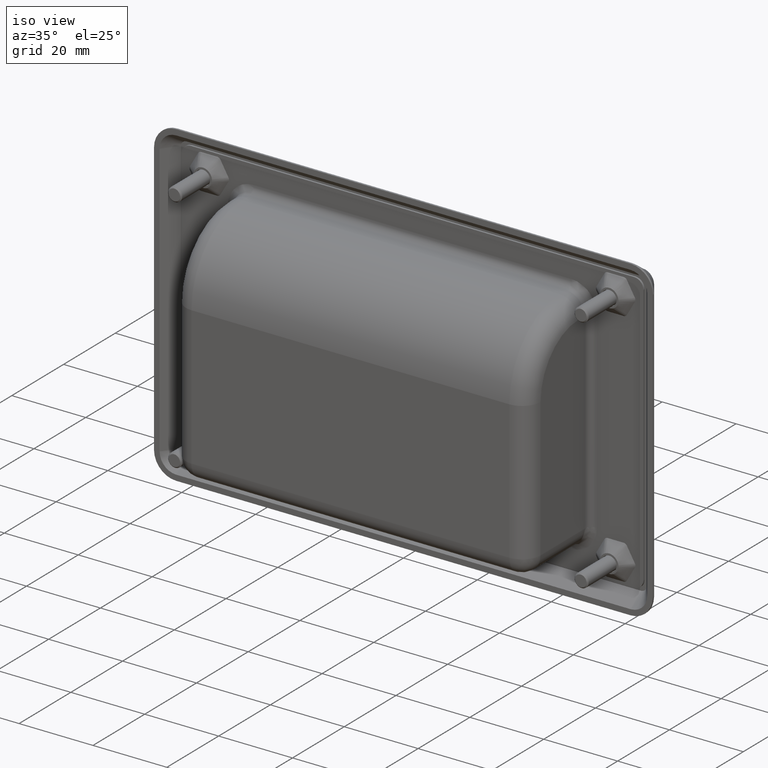
[diagram: clean part render]
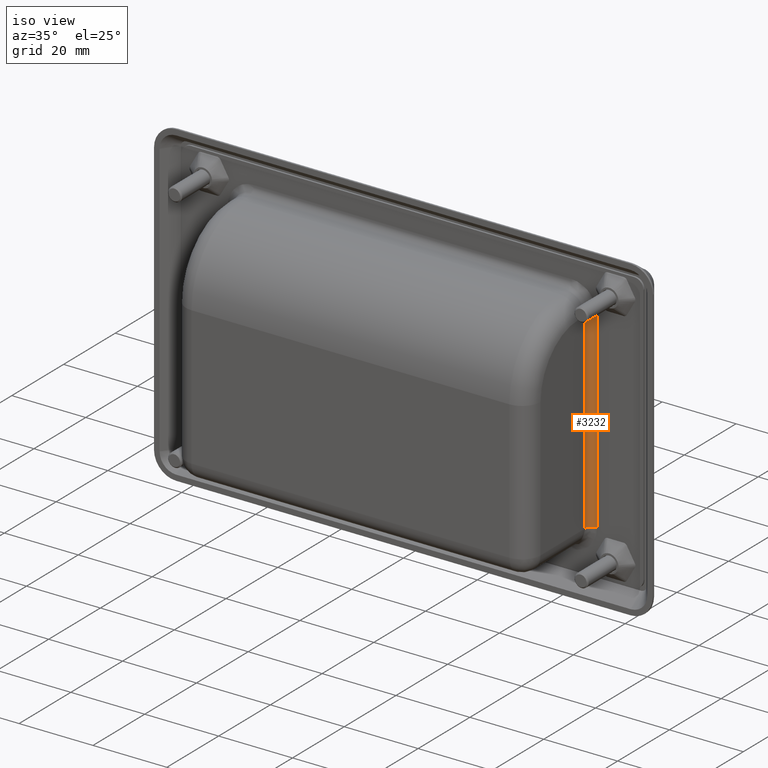
[diagram: same view with one face highlighted and labeled with its STEP entity id]
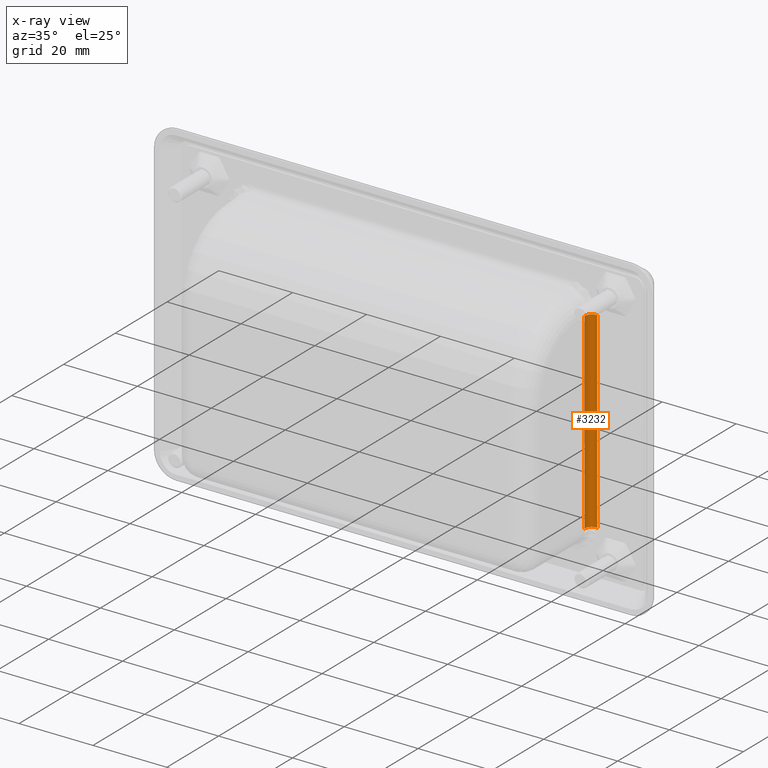
[diagram: x-ray of the same camera — body ghosted, the highlighted face saturated]
A machine part, iso view. The second image highlights one B-rep face of the part: STEP entity #3232.
The next image is the same camera in x-ray: the body ghosted, the highlighted face saturated — about 0% of this face is hidden behind the body in this view.
In plain terms, the highlighted face is a freeform B-spline surface patch.
Its self-contained STEP definition (entity closure, byte-faithful):
#83=B_SPLINE_SURFACE_WITH_KNOTS('',3,1,((#6890,#6891),(#6892,#6893),(#6894,
#6895),(#6896,#6897),(#6898,#6899),(#6900,#6901),(#6902,#6903),(#6904,#6905)),
 .UNSPECIFIED.,.F.,.F.,.F.,(4,1,1,1,1,4),(2,2),(0.,0.285714285714286,0.428571428571429,
0.571428571428571,0.857142857142857,1.),(0.,6.24),.UNSPECIFIED.);
#149=B_SPLINE_CURVE_WITH_KNOTS('',3,(#6881,#6882,#6883,#6884,#6885,#6886,
#6887,#6888),.UNSPECIFIED.,.F.,.F.,(4,1,1,1,1,4),(-1.,-0.857142857142857,
-0.571428571428571,-0.428571428571429,-0.285714285714286,0.),
 .UNSPECIFIED.);
#150=B_SPLINE_CURVE_WITH_KNOTS('',3,(#6908,#6909,#6910,#6911,#6912,#6913,
#6914,#6915),.UNSPECIFIED.,.F.,.F.,(4,1,1,1,1,4),(0.,0.285714285714286,
0.428571428571429,0.571428571428571,0.857142857142857,1.),.UNSPECIFIED.);
#417=FACE_OUTER_BOUND('',#636,.T.);
#636=EDGE_LOOP('',(#2782,#2783,#2784,#2785));
#894=LINE('',#6916,#1138);
#895=LINE('',#6917,#1139);
#1138=VECTOR('',#4233,52.);
#1139=VECTOR('',#4234,52.);
#1591=VERTEX_POINT('',#6878);
#1592=VERTEX_POINT('',#6880);
#1593=VERTEX_POINT('',#6906);
#1594=VERTEX_POINT('',#6907);
#2013=EDGE_CURVE('',#1591,#1592,#149,.T.);
#2015=EDGE_CURVE('',#1593,#1594,#150,.T.);
#2016=EDGE_CURVE('',#1594,#1592,#894,.T.);
#2017=EDGE_CURVE('',#1591,#1593,#895,.T.);
#2782=ORIENTED_EDGE('',*,*,#2015,.T.);
#2783=ORIENTED_EDGE('',*,*,#2016,.T.);
#2784=ORIENTED_EDGE('',*,*,#2013,.F.);
#2785=ORIENTED_EDGE('',*,*,#2017,.T.);
#3232=ADVANCED_FACE('',(#417),#83,.T.);
#4233=DIRECTION('',(0.,0.,-1.));
#4234=DIRECTION('',(0.,0.,1.));
#6878=CARTESIAN_POINT('',(50.,0.,-26.));
#6880=CARTESIAN_POINT('',(48.,-2.,-26.));
#6881=CARTESIAN_POINT('Ctrl Pts',(50.,-5.55111512312578E-15,-26.));
#6882=CARTESIAN_POINT('Ctrl Pts',(49.8504003498291,-4.36687723019228E-15,
-26.));
#6883=CARTESIAN_POINT('Ctrl Pts',(49.4092506257795,0.00334211089015276,
-26.));
#6884=CARTESIAN_POINT('Ctrl Pts',(48.8148766596764,-0.211205081114927,-26.));
#6885=CARTESIAN_POINT('Ctrl Pts',(48.3365007526744,-0.692768602149364,-26.));
#6886=CARTESIAN_POINT('Ctrl Pts',(48.0222033752099,-1.25187620031755,-26.));
#6887=CARTESIAN_POINT('Ctrl Pts',(48.,-1.70080069965811,-26.));
#6888=CARTESIAN_POINT('Ctrl Pts',(48.,-2.,-26.));
#6890=CARTESIAN_POINT('Ctrl Pts',(50.,0.,26.));
#6891=CARTESIAN_POINT('Ctrl Pts',(50.,0.,-36.4));
#6892=CARTESIAN_POINT('Ctrl Pts',(49.7008006996581,0.,26.));
#6893=CARTESIAN_POINT('Ctrl Pts',(49.7008006996581,0.,-36.4));
#6894=CARTESIAN_POINT('Ctrl Pts',(49.2518908552422,-0.0221852949644495,
26.));
#6895=CARTESIAN_POINT('Ctrl Pts',(49.2518908552422,-0.0221852949644495,
-36.4));
#6896=CARTESIAN_POINT('Ctrl Pts',(48.6927829600961,-0.336484375822677,26.));
#6897=CARTESIAN_POINT('Ctrl Pts',(48.6927829600961,-0.336484375822677,-36.4));
#6898=CARTESIAN_POINT('Ctrl Pts',(48.2112174820483,-0.814861970497193,26.));
#6899=CARTESIAN_POINT('Ctrl Pts',(48.2112174820483,-0.814861970497193,-36.4));
#6900=CARTESIAN_POINT('Ctrl Pts',(47.9966615646653,-1.40924681431404,26.));
#6901=CARTESIAN_POINT('Ctrl Pts',(47.9966615646653,-1.40924681431404,-36.4));
#6902=CARTESIAN_POINT('Ctrl Pts',(48.,-1.85040034982906,26.));
#6903=CARTESIAN_POINT('Ctrl Pts',(48.,-1.85040034982906,-36.4));
#6904=CARTESIAN_POINT('Ctrl Pts',(48.,-2.,26.));
#6905=CARTESIAN_POINT('Ctrl Pts',(48.,-2.,-36.4));
#6906=CARTESIAN_POINT('',(50.,0.,26.));
#6907=CARTESIAN_POINT('',(48.,-2.,26.));
#6908=CARTESIAN_POINT('Ctrl Pts',(50.,0.,26.));
#6909=CARTESIAN_POINT('Ctrl Pts',(49.7008006996581,0.,26.));
#6910=CARTESIAN_POINT('Ctrl Pts',(49.2518908552422,-0.0221852949644495,
26.));
#6911=CARTESIAN_POINT('Ctrl Pts',(48.6927829600961,-0.336484375822677,26.));
#6912=CARTESIAN_POINT('Ctrl Pts',(48.2112174820483,-0.814861970497193,26.));
#6913=CARTESIAN_POINT('Ctrl Pts',(47.9966615646653,-1.40924681431404,26.));
#6914=CARTESIAN_POINT('Ctrl Pts',(48.,-1.85040034982906,26.));
#6915=CARTESIAN_POINT('Ctrl Pts',(48.,-2.,26.));
#6916=CARTESIAN_POINT('',(48.,-2.,-15.5));
#6917=CARTESIAN_POINT('',(50.,0.,-15.5));